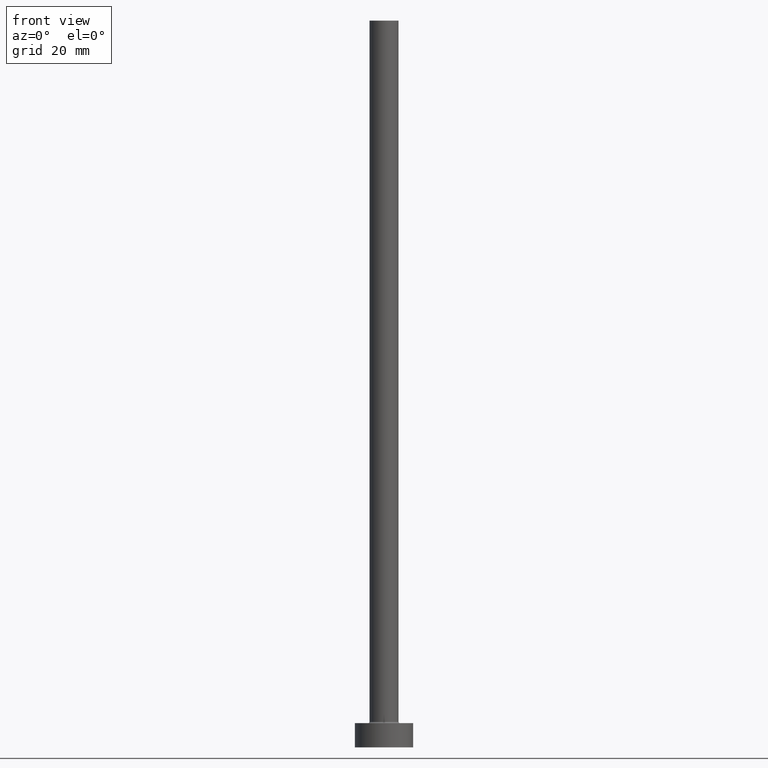
[diagram: clean part render]
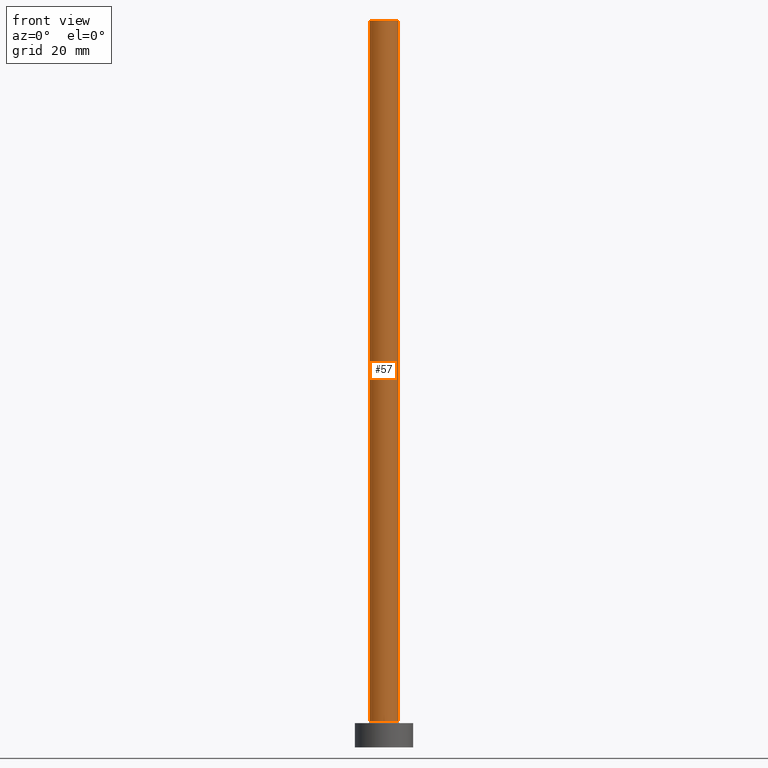
[diagram: same view with one face highlighted and labeled with its STEP entity id]
A machine part, front view. The second image highlights one B-rep face of the part: STEP entity #57.
In plain terms, the highlighted cylindrical surface (edge-blend (fillet) strip) has radius 3 mm, axis along (-0, -0, -1).
Its self-contained STEP definition (entity closure, byte-faithful):
#17 = AXIS2_PLACEMENT_3D ( 'NONE', #271, #456, #106 ) ;
#55 = EDGE_LOOP ( 'NONE', ( #444, #393, #220, #364 ) ) ;
#57 = ADVANCED_FACE ( 'NONE', ( #171 ), #450, .T. ) ;
#67 = EDGE_CURVE ( 'NONE', #326, #439, #315, .T. ) ;
#84 = CARTESIAN_POINT ( 'NONE',  ( 3.000000000000000444, 3.673940397442060361E-16, 5.299999999999998934 ) ) ;
#86 = AXIS2_PLACEMENT_3D ( 'NONE', #130, #137, #374 ) ;
#100 = DIRECTION ( 'NONE',  ( -0.000000000000000000, -0.000000000000000000, -1.000000000000000000 ) ) ;
#106 = DIRECTION ( 'NONE',  ( 1.000000000000000000, 0.000000000000000000, 0.000000000000000000 ) ) ;
#127 = EDGE_CURVE ( 'NONE', #328, #326, #131, .T. ) ;
#130 = CARTESIAN_POINT ( 'NONE',  ( 0.000000000000000000, 0.000000000000000000, 150.0000000000000000 ) ) ;
#131 = CIRCLE ( 'NONE', #17, 3.000000000000000444 ) ;
#137 = DIRECTION ( 'NONE',  ( -0.000000000000000000, -0.000000000000000000, -1.000000000000000000 ) ) ;
#171 = FACE_OUTER_BOUND ( 'NONE', #55, .T. ) ;
#194 = EDGE_CURVE ( 'NONE', #328, #371, #434, .T. ) ;
#213 = CARTESIAN_POINT ( 'NONE',  ( -3.000000000000000444, 0.000000000000000000, 150.0000000000000000 ) ) ;
#216 = CARTESIAN_POINT ( 'NONE',  ( 0.000000000000000000, 0.000000000000000000, 5.299999999999998934 ) ) ;
#220 = ORIENTED_EDGE ( 'NONE', *, *, #194, .T. ) ;
#225 = DIRECTION ( 'NONE',  ( 1.000000000000000000, 0.000000000000000000, 0.000000000000000000 ) ) ;
#229 = VECTOR ( 'NONE', #389, 1000.000000000000000 ) ;
#237 = CARTESIAN_POINT ( 'NONE',  ( 3.000000000000000444, 3.673940397442060361E-16, 150.0000000000000000 ) ) ;
#243 = CARTESIAN_POINT ( 'NONE',  ( -3.000000000000000444, 0.000000000000000000, 5.299999999999998934 ) ) ;
#271 = CARTESIAN_POINT ( 'NONE',  ( 0.000000000000000000, 0.000000000000000000, 150.0000000000000000 ) ) ;
#277 = AXIS2_PLACEMENT_3D ( 'NONE', #216, #455, #225 ) ;
#285 = VECTOR ( 'NONE', #100, 1000.000000000000000 ) ;
#315 = LINE ( 'NONE', #237, #285 ) ;
#326 = VERTEX_POINT ( 'NONE', #357 ) ;
#328 = VERTEX_POINT ( 'NONE', #460 ) ;
#357 = CARTESIAN_POINT ( 'NONE',  ( 3.000000000000000444, 3.673940397442060361E-16, 150.0000000000000000 ) ) ;
#364 = ORIENTED_EDGE ( 'NONE', *, *, #438, .T. ) ;
#371 = VERTEX_POINT ( 'NONE', #243 ) ;
#374 = DIRECTION ( 'NONE',  ( -1.000000000000000000, 0.000000000000000000, 0.000000000000000000 ) ) ;
#375 = CIRCLE ( 'NONE', #277, 3.000000000000000444 ) ;
#389 = DIRECTION ( 'NONE',  ( -0.000000000000000000, -0.000000000000000000, -1.000000000000000000 ) ) ;
#393 = ORIENTED_EDGE ( 'NONE', *, *, #127, .F. ) ;
#434 = LINE ( 'NONE', #213, #229 ) ;
#438 = EDGE_CURVE ( 'NONE', #371, #439, #375, .T. ) ;
#439 = VERTEX_POINT ( 'NONE', #84 ) ;
#444 = ORIENTED_EDGE ( 'NONE', *, *, #67, .F. ) ;
#450 = CYLINDRICAL_SURFACE ( 'NONE', #86, 3.000000000000000444 ) ;
#455 = DIRECTION ( 'NONE',  ( 0.000000000000000000, 0.000000000000000000, 1.000000000000000000 ) ) ;
#456 = DIRECTION ( 'NONE',  ( 0.000000000000000000, 0.000000000000000000, 1.000000000000000000 ) ) ;
#460 = CARTESIAN_POINT ( 'NONE',  ( -3.000000000000000444, 0.000000000000000000, 150.0000000000000000 ) ) ;